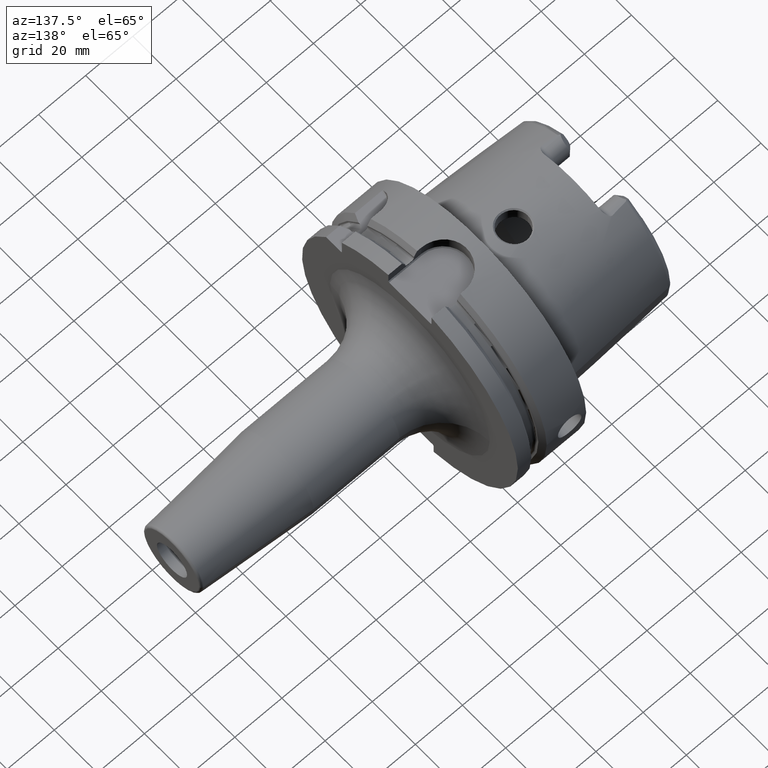
[diagram: clean part render]
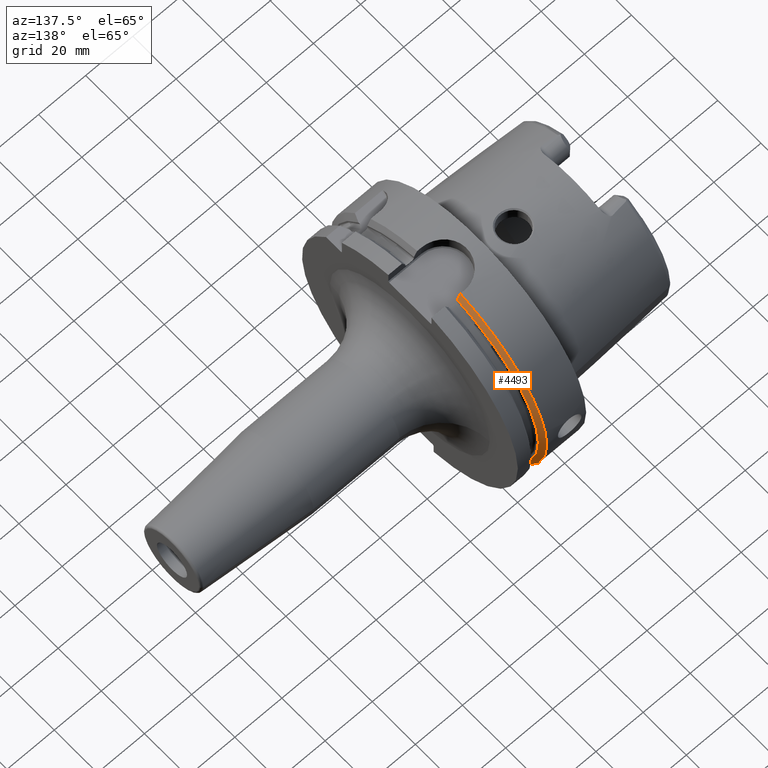
[diagram: same view with one face highlighted and labeled with its STEP entity id]
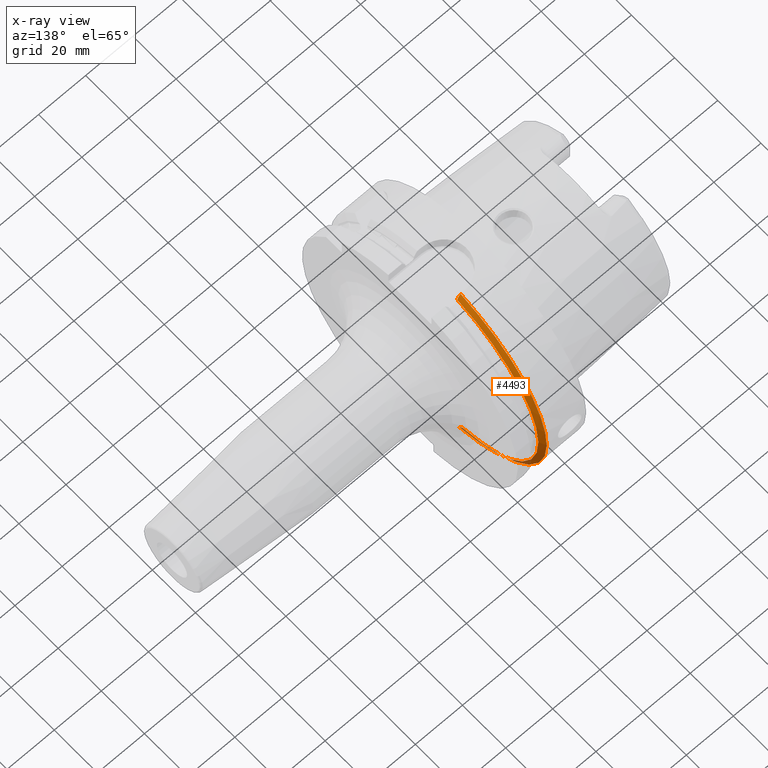
[diagram: x-ray of the same camera — body ghosted, the highlighted face saturated]
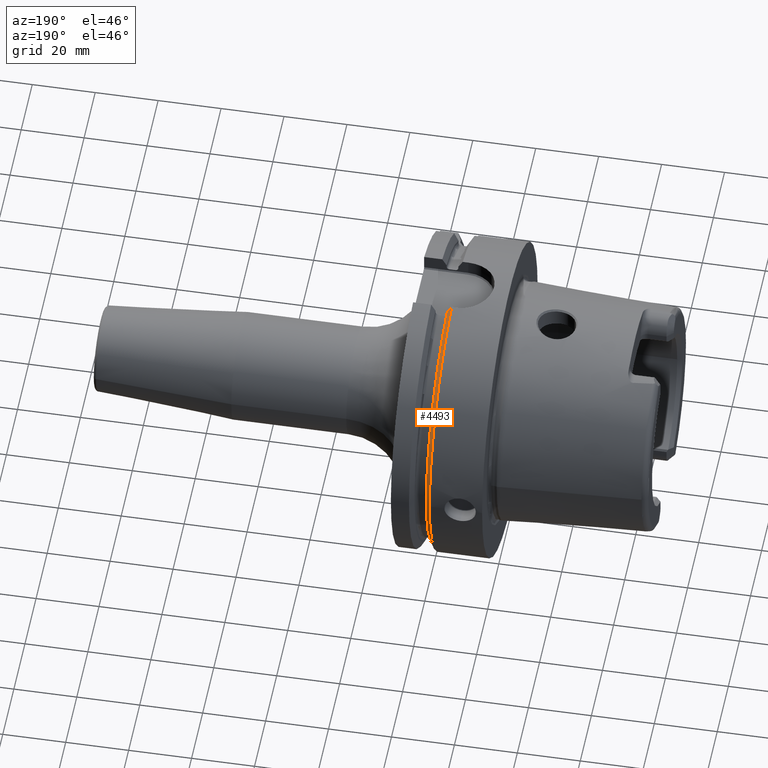
[diagram: same view with one face highlighted and labeled with its STEP entity id]
A machine part, auxiliary view. The second image highlights one B-rep face of the part: STEP entity #4493.
The next image is the same camera in x-ray: the body ghosted, the highlighted face saturated — about 6% of this face is hidden behind the body in this view.
A second angle (auxiliary view) of the same face is appended — the face is thin or edge-on in the first view.
In plain terms, the highlighted conical surface has half-angle 60 deg.
Its self-contained STEP definition (entity closure, byte-faithful):
#983=CARTESIAN_POINT('',(1.675240473581E1,0.E0,0.E0));
#984=DIRECTION('',(1.E0,0.E0,0.E0));
#985=DIRECTION('',(0.E0,1.E0,0.E0));
#986=AXIS2_PLACEMENT_3D('',#983,#984,#985);
#1153=CARTESIAN_POINT('',(1.675240473581E1,0.E0,0.E0));
#1154=DIRECTION('',(1.E0,0.E0,0.E0));
#1155=DIRECTION('',(0.E0,2.2E-1,-9.754998718606E-1));
#1156=AXIS2_PLACEMENT_3D('',#1153,#1154,#1155);
#1293=CARTESIAN_POINT('',(1.675240473581E1,1.1E1,-4.877499359303E1));
#1294=CARTESIAN_POINT('',(1.690924381756E1,1.1E1,-4.849651763825E1));
#1295=CARTESIAN_POINT('',(1.722003488111E1,1.1E1,-4.794446101512E1));
#1296=CARTESIAN_POINT('',(1.767748451792E1,1.1E1,-4.713119970766E1));
#1297=CARTESIAN_POINT('',(1.797678145324E1,1.1E1,-4.659863454325E1));
#1298=CARTESIAN_POINT('',(1.8125E1,1.1E1,-4.633477721644E1));
#1300=CARTESIAN_POINT('',(1.8125E1,0.E0,0.E0));
#1301=DIRECTION('',(1.E0,0.E0,0.E0));
#1302=DIRECTION('',(0.E0,2.309827916554E-1,-9.729578356533E-1));
#1303=AXIS2_PLACEMENT_3D('',#1300,#1301,#1302);
#1305=CARTESIAN_POINT('',(1.8125E1,1.E1,4.656083740331E1));
#1306=CARTESIAN_POINT('',(1.797658514585E1,1.E1,4.682376142925E1));
#1307=CARTESIAN_POINT('',(1.767702607707E1,1.E1,4.735424823675E1));
#1308=CARTESIAN_POINT('',(1.721956688963E1,1.E1,4.816377318979E1));
#1309=CARTESIAN_POINT('',(1.690904309270E1,1.E1,4.871289474479E1));
#1310=CARTESIAN_POINT('',(1.675240473581E1,1.E1,4.898979485566E1));
#2944=CARTESIAN_POINT('',(1.675240473581E1,5.E1,0.E0));
#2945=VERTEX_POINT('',#2944);
#2966=CARTESIAN_POINT('',(1.675240473581E1,1.E1,4.898979485566E1));
#2967=VERTEX_POINT('',#2966);
#2972=CARTESIAN_POINT('',(1.8125E1,1.E1,4.656083740331E1));
#2974=VERTEX_POINT('',#2972);
#2995=CARTESIAN_POINT('',(1.675240473581E1,1.1E1,-4.877499359303E1));
#2997=VERTEX_POINT('',#2995);
#3010=CARTESIAN_POINT('',(1.8125E1,1.1E1,-4.633477721644E1));
#3012=VERTEX_POINT('',#3010);
#4479=CARTESIAN_POINT('',(1.743870236790E1,0.E0,0.E0));
#4480=DIRECTION('',(-1.E0,0.E0,0.E0));
#4481=DIRECTION('',(0.E0,1.E0,0.E0));
#4482=AXIS2_PLACEMENT_3D('',#4479,#4480,#4481);
#4483=CONICAL_SURFACE('',#4482,4.881129763210E1,6.E1);
#4484=ORIENTED_EDGE('',*,*,#4376,.T.);
#4486=ORIENTED_EDGE('',*,*,#4485,.T.);
#4488=ORIENTED_EDGE('',*,*,#4487,.T.);
#4489=ORIENTED_EDGE('',*,*,#4155,.F.);
#4490=ORIENTED_EDGE('',*,*,#4336,.F.);
#4491=EDGE_LOOP('',(#4484,#4486,#4488,#4489,#4490));
#4492=FACE_OUTER_BOUND('',#4491,.F.);
#4493=ADVANCED_FACE('',(#4492),#4483,.T.);
#987=CIRCLE('',#986,5.E1);
#1157=CIRCLE('',#1156,5.E1);
#1299=B_SPLINE_CURVE_WITH_KNOTS('',3,(#1293,#1294,#1295,#1296,#1297,#1298),
.UNSPECIFIED.,.F.,.F.,(4,1,1,4),(0.E0,3.333333333333E-1,6.666666666667E-1,1.E0),
.UNSPECIFIED.);
#1304=CIRCLE('',#1303,4.762259526419E1);
#1311=B_SPLINE_CURVE_WITH_KNOTS('',3,(#1305,#1306,#1307,#1308,#1309,#1310),
.UNSPECIFIED.,.F.,.F.,(4,1,1,4),(0.E0,3.333333333333E-1,6.666666666667E-1,1.E0),
.UNSPECIFIED.);
#4155=EDGE_CURVE('',#2945,#2967,#987,.T.);
#4336=EDGE_CURVE('',#2997,#2945,#1157,.T.);
#4376=EDGE_CURVE('',#2997,#3012,#1299,.T.);
#4485=EDGE_CURVE('',#3012,#2974,#1304,.T.);
#4487=EDGE_CURVE('',#2974,#2967,#1311,.T.);